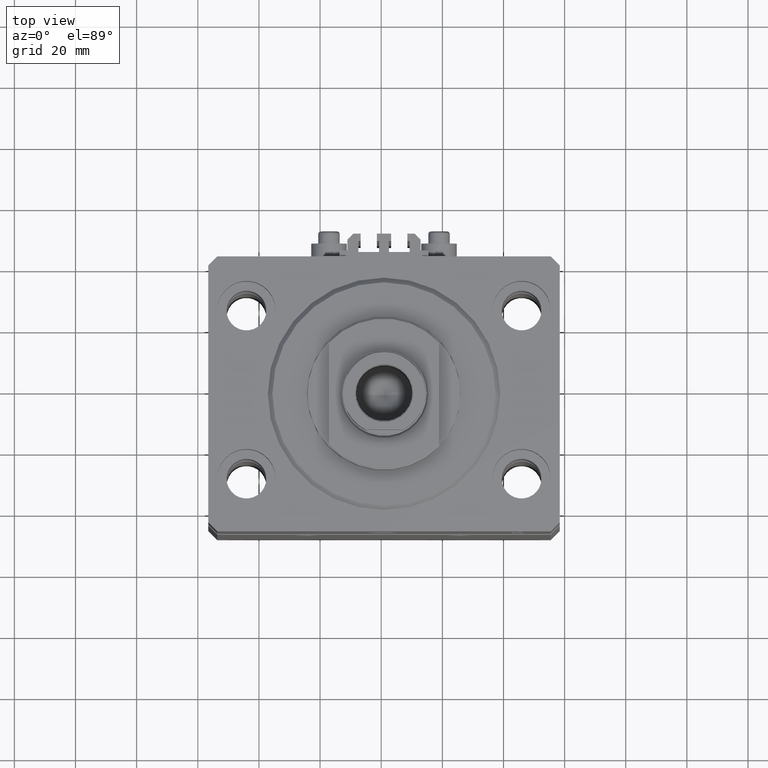
[diagram: clean part render]
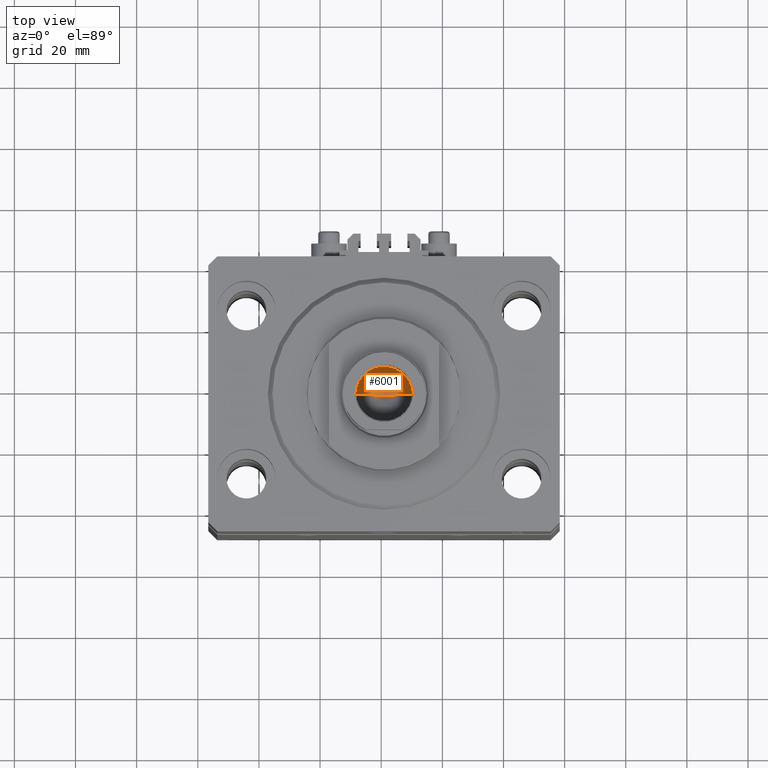
[diagram: same view with one face highlighted and labeled with its STEP entity id]
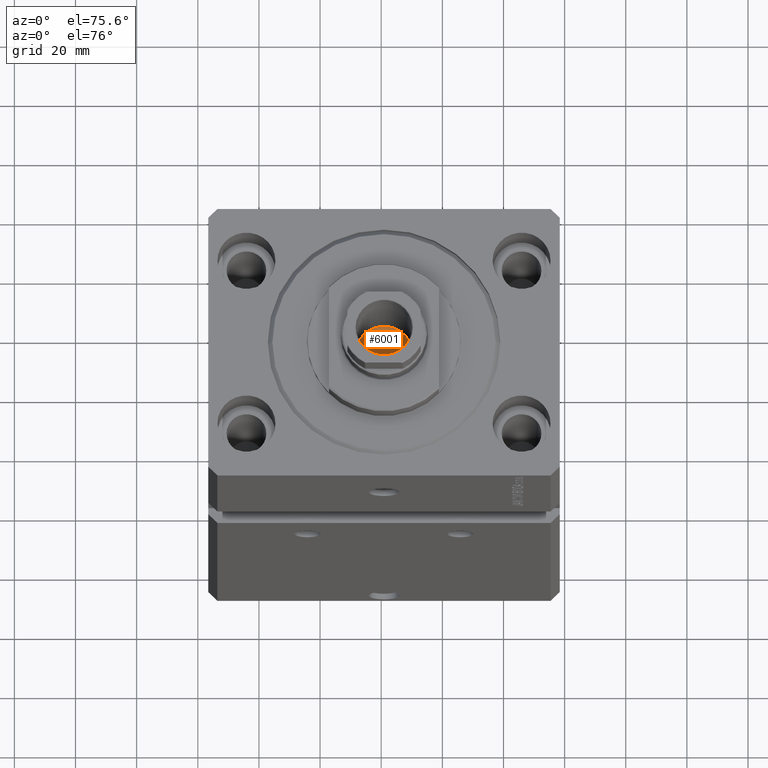
[diagram: same view with one face highlighted and labeled with its STEP entity id]
A machine part, top view. The second image highlights one B-rep face of the part: STEP entity #6001.
A second angle (auxiliary view) of the same face is appended — the face is thin or edge-on in the first view.
In plain terms, the highlighted conical surface has half-angle 59 deg.
Its self-contained STEP definition (entity closure, byte-faithful):
#986 = CIRCLE ( 'NONE', #11403, 9.249999999999994671 ) ;
#1239 = VERTEX_POINT ( 'NONE', #40710 ) ;
#4056 = ORIENTED_EDGE ( 'NONE', *, *, #31786, .F. ) ;
#6001 = ADVANCED_FACE ( 'NONE', ( #47996 ), #17611, .F. ) ;
#6666 = CARTESIAN_POINT ( 'NONE',  ( 0.000000000000000000, 0.000000000000000000, 132.1000000000000227 ) ) ;
#7285 = CARTESIAN_POINT ( 'NONE',  ( -9.249999999999994671, 1.132798289211300909E-15, 132.1000000000000227 ) ) ;
#7560 = VERTEX_POINT ( 'NONE', #43998 ) ;
#9526 = VECTOR ( 'NONE', #45271, 1000.000000000000114 ) ;
#11403 = AXIS2_PLACEMENT_3D ( 'NONE', #6666, #33570, #48905 ) ;
#12632 = ORIENTED_EDGE ( 'NONE', *, *, #14637, .T. ) ;
#12802 = ORIENTED_EDGE ( 'NONE', *, *, #23997, .T. ) ;
#13527 = EDGE_LOOP ( 'NONE', ( #4056, #12802, #12632 ) ) ;
#14637 = EDGE_CURVE ( 'NONE', #30450, #7560, #986, .T. ) ;
#17611 = CONICAL_SURFACE ( 'NONE', #45741, 9.249999999999994671, 1.029744258676654534 ) ;
#18658 = CARTESIAN_POINT ( 'NONE',  ( 9.249999999999994671, 0.000000000000000000, 132.1000000000000227 ) ) ;
#19075 = DIRECTION ( 'NONE',  ( 0.8571673007021122226, 0.000000000000000000, 0.5150380749100541555 ) ) ;
#23997 = EDGE_CURVE ( 'NONE', #1239, #30450, #30664, .T. ) ;
#24381 = DIRECTION ( 'NONE',  ( 1.000000000000000000, 0.000000000000000000, 0.000000000000000000 ) ) ;
#24868 = DIRECTION ( 'NONE',  ( -0.000000000000000000, -0.000000000000000000, 1.000000000000000000 ) ) ;
#30266 = VECTOR ( 'NONE', #19075, 1000.000000000000114 ) ;
#30450 = VERTEX_POINT ( 'NONE', #18658 ) ;
#30664 = LINE ( 'NONE', #42959, #30266 ) ;
#31786 = EDGE_CURVE ( 'NONE', #1239, #7560, #33449, .T. ) ;
#33449 = LINE ( 'NONE', #7285, #9526 ) ;
#33570 = DIRECTION ( 'NONE',  ( -0.000000000000000000, -0.000000000000000000, 1.000000000000000000 ) ) ;
#40710 = CARTESIAN_POINT ( 'NONE',  ( -1.046994375366439223E-14, 0.000000000000000000, 126.5420392739951012 ) ) ;
#42959 = CARTESIAN_POINT ( 'NONE',  ( 9.249999999999994671, 0.000000000000000000, 132.1000000000000227 ) ) ;
#43980 = CARTESIAN_POINT ( 'NONE',  ( 0.000000000000000000, 0.000000000000000000, 132.1000000000000227 ) ) ;
#43998 = CARTESIAN_POINT ( 'NONE',  ( -9.249999999999994671, 1.132798289211300909E-15, 132.1000000000000227 ) ) ;
#45271 = DIRECTION ( 'NONE',  ( -0.8571673007021122226, 1.049727191138618696E-16, 0.5150380749100541555 ) ) ;
#45741 = AXIS2_PLACEMENT_3D ( 'NONE', #43980, #24868, #24381 ) ;
#47996 = FACE_OUTER_BOUND ( 'NONE', #13527, .T. ) ;
#48905 = DIRECTION ( 'NONE',  ( 1.000000000000000000, 0.000000000000000000, 0.000000000000000000 ) ) ;